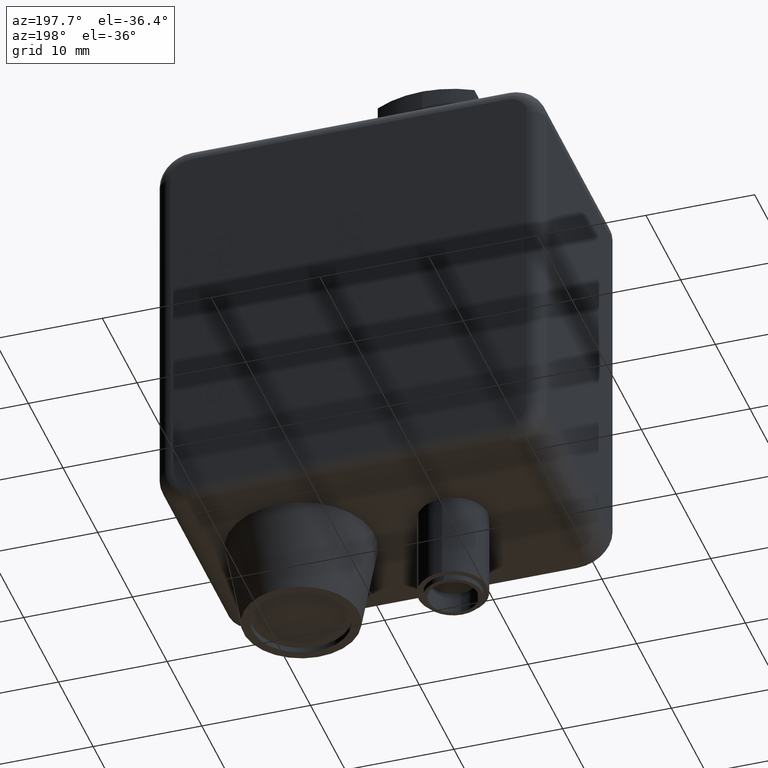
[diagram: clean part render]
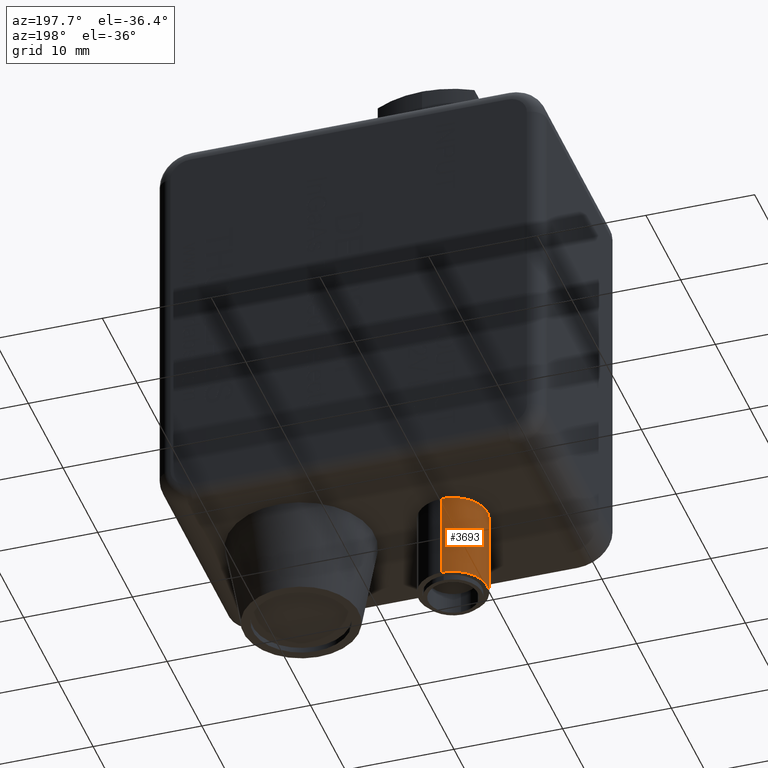
[diagram: same view with one face highlighted and labeled with its STEP entity id]
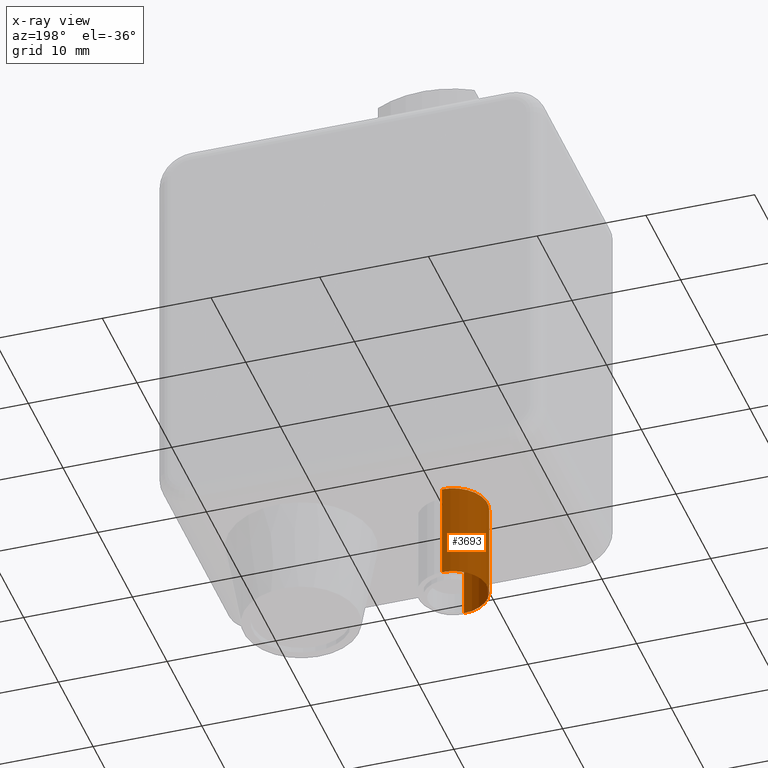
[diagram: x-ray of the same camera — body ghosted, the highlighted face saturated]
A machine part, auxiliary view. The second image highlights one B-rep face of the part: STEP entity #3693.
The next image is the same camera in x-ray: the body ghosted, the highlighted face saturated — about 0% of this face is hidden behind the body in this view.
In plain terms, the highlighted cylindrical surface (edge-blend (fillet) strip) has radius 3.175 mm, axis along (-0, 0, 1).
Its self-contained STEP definition (entity closure, byte-faithful):
#2026 = CIRCLE ( 'NONE', #51094, 0.1250000000000000000 ) ;
#2032 = LINE ( 'NONE', #68317, #2039 ) ;
#2035 = CIRCLE ( 'NONE', #51096, 0.1250000000000000000 ) ;
#2039 = VECTOR ( 'NONE', #68315, 39.37007874015748100 ) ;
#2040 = LINE ( 'NONE', #68321, #2044 ) ;
#2044 = VECTOR ( 'NONE', #68316, 39.37007874015748100 ) ;
#3693 = ADVANCED_FACE ( 'NONE', ( #34010 ), #34029, .T. ) ;
#5563 = ORIENTED_EDGE ( 'NONE', *, *, #9311, .F. ) ;
#5564 = ORIENTED_EDGE ( 'NONE', *, *, #9312, .T. ) ;
#5565 = ORIENTED_EDGE ( 'NONE', *, *, #9313, .T. ) ;
#5566 = ORIENTED_EDGE ( 'NONE', *, *, #9314, .F. ) ;
#9311 = EDGE_CURVE ( 'NONE', #24280, #28253, #2026, .T. ) ;
#9312 = EDGE_CURVE ( 'NONE', #24280, #24270, #2032, .T. ) ;
#9313 = EDGE_CURVE ( 'NONE', #24270, #24538, #2035, .T. ) ;
#9314 = EDGE_CURVE ( 'NONE', #28253, #24538, #2040, .T. ) ;
#24270 = VERTEX_POINT ( 'NONE', #63045 ) ;
#24280 = VERTEX_POINT ( 'NONE', #63055 ) ;
#24538 = VERTEX_POINT ( 'NONE', #65607 ) ;
#28253 = VERTEX_POINT ( 'NONE', #65885 ) ;
#34010 = FACE_OUTER_BOUND ( 'NONE', #87157, .T. ) ;
#34029 = CYLINDRICAL_SURFACE ( 'NONE', #50707, 0.1250000000000000000 ) ;
#48803 = DIRECTION ( 'NONE',  ( -0.0000000000000000000, -0.0000000000000000000, -1.000000000000000000 ) ) ;
#48809 = CARTESIAN_POINT ( 'NONE',  ( 0.0000000000000000000, 0.0000000000000000000, 0.6340000000000000100 ) ) ;
#48819 = DIRECTION ( 'NONE',  ( -1.000000000000000000, 0.0000000000000000000, 0.0000000000000000000 ) ) ;
#50707 = AXIS2_PLACEMENT_3D ( 'NONE', #48809, #48803, #48819 ) ;
#51094 = AXIS2_PLACEMENT_3D ( 'NONE', #68318, #68319, #68320 ) ;
#51096 = AXIS2_PLACEMENT_3D ( 'NONE', #68322, #68323, #68324 ) ;
#63045 = CARTESIAN_POINT ( 'NONE',  ( 0.1250000000000000000, 1.530808498934191200E-017, 0.2590000000000000100 ) ) ;
#63055 = CARTESIAN_POINT ( 'NONE',  ( 0.1250000000000000000, 1.530808498934191200E-017, 0.6139999999999999900 ) ) ;
#65607 = CARTESIAN_POINT ( 'NONE',  ( -0.1250000000000000000, 0.0000000000000000000, 0.2590000000000000100 ) ) ;
#65885 = CARTESIAN_POINT ( 'NONE',  ( -0.1250000000000000000, 0.0000000000000000000, 0.6139999999999999900 ) ) ;
#68315 = DIRECTION ( 'NONE',  ( -0.0000000000000000000, -0.0000000000000000000, -1.000000000000000000 ) ) ;
#68316 = DIRECTION ( 'NONE',  ( -0.0000000000000000000, -0.0000000000000000000, -1.000000000000000000 ) ) ;
#68317 = CARTESIAN_POINT ( 'NONE',  ( 0.1250000000000000000, 1.530808498934191200E-017, 0.6340000000000000100 ) ) ;
#68318 = CARTESIAN_POINT ( 'NONE',  ( 0.0000000000000000000, 0.0000000000000000000, 0.6139999999999999900 ) ) ;
#68319 = DIRECTION ( 'NONE',  ( 0.0000000000000000000, 0.0000000000000000000, 1.000000000000000000 ) ) ;
#68320 = DIRECTION ( 'NONE',  ( 1.000000000000000000, 0.0000000000000000000, 0.0000000000000000000 ) ) ;
#68321 = CARTESIAN_POINT ( 'NONE',  ( -0.1250000000000000000, 0.0000000000000000000, 0.6340000000000000100 ) ) ;
#68322 = CARTESIAN_POINT ( 'NONE',  ( 0.0000000000000000000, 0.0000000000000000000, 0.2590000000000000100 ) ) ;
#68323 = DIRECTION ( 'NONE',  ( 0.0000000000000000000, 0.0000000000000000000, 1.000000000000000000 ) ) ;
#68324 = DIRECTION ( 'NONE',  ( 1.000000000000000000, 0.0000000000000000000, 0.0000000000000000000 ) ) ;
#87157 = EDGE_LOOP ( 'NONE', ( #5563, #5564, #5565, #5566 ) ) ;